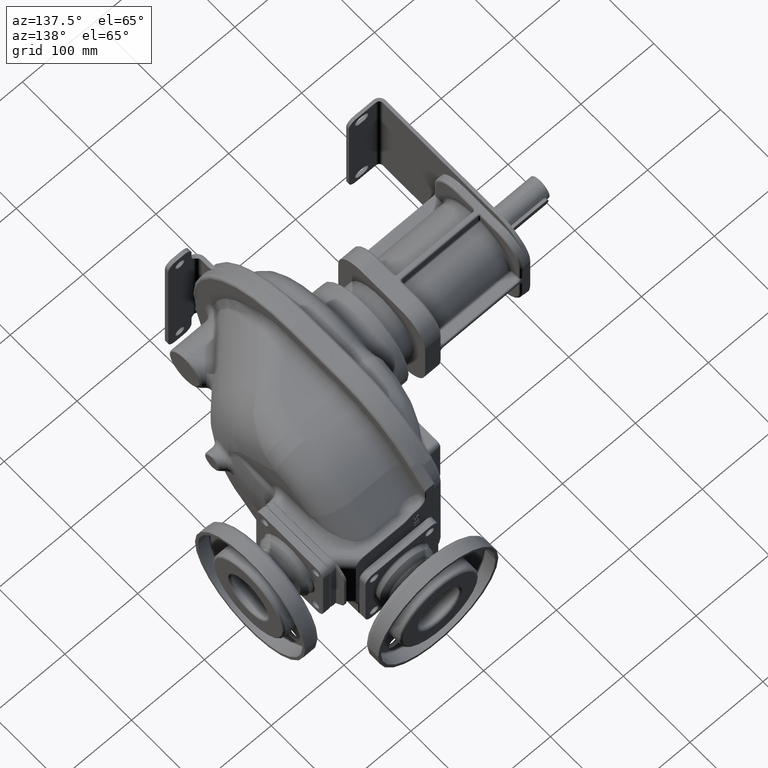
[diagram: clean part render]
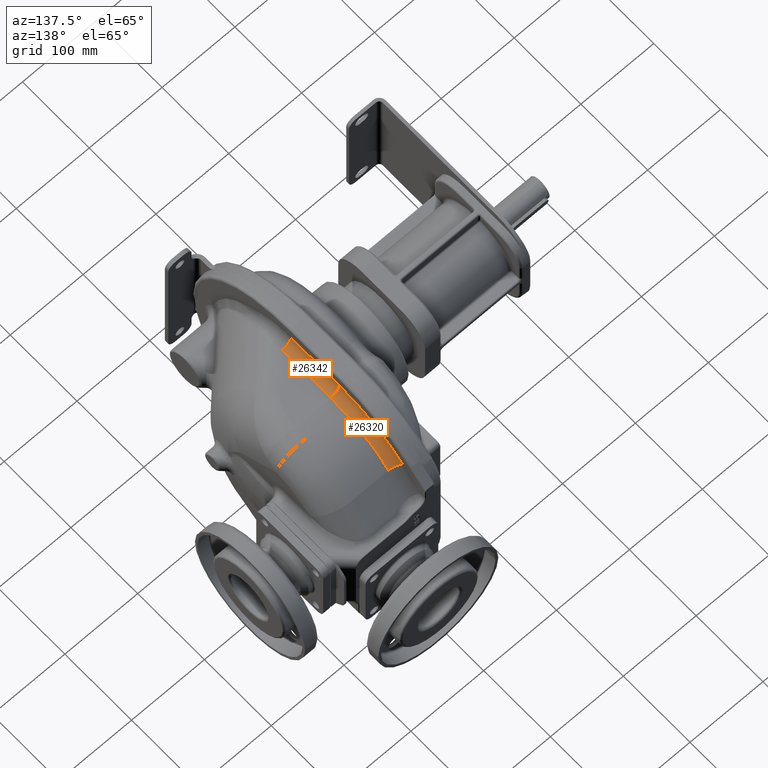
[diagram: same view with one multi-face feature highlighted, each face labeled with its STEP entity id]
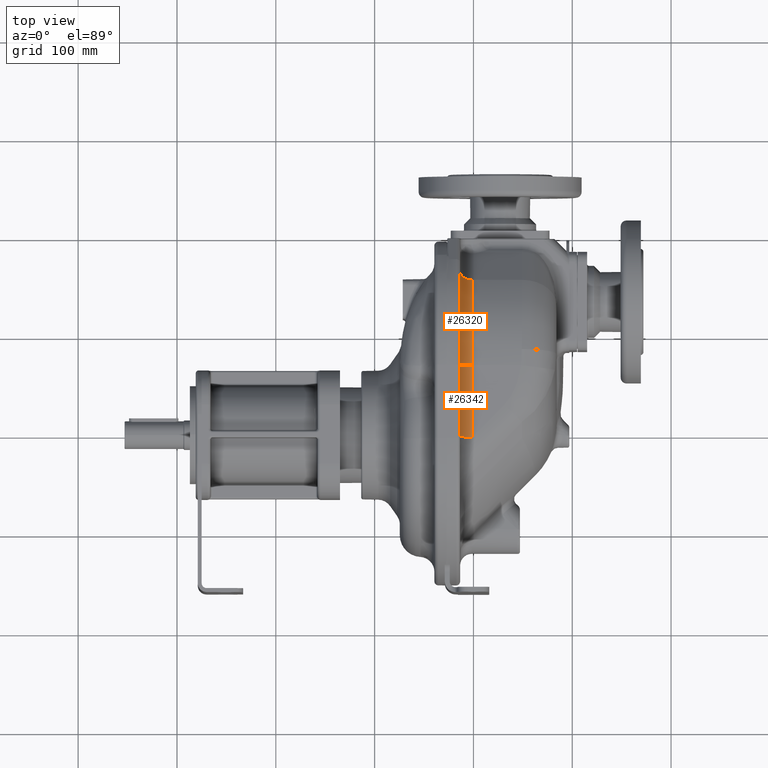
[diagram: same view with one multi-face feature highlighted, each face labeled with its STEP entity id]
A machine part, auxiliary view. The highlighted faces form ONE feature: a constant-radius fillet chain: 2 tangent blend faces with common blend radius 12 mm. The faces share edges in the B-rep.
A second angle (top view) of the same feature is appended — it is thin or edge-on in the first view.
Their STEP definitions:
[1] entity #26320 (Torus):
#1146=CARTESIAN_POINT('',(-1.5E0,6.9E1,-1.E1));
#1147=DIRECTION('',(-1.E0,0.E0,0.E0));
#1148=DIRECTION('',(0.E0,0.E0,1.E0));
#1149=AXIS2_PLACEMENT_3D('',#1146,#1147,#1148);
#1172=CARTESIAN_POINT('',(-1.5E0,6.9E1,1.25E2));
#1173=DIRECTION('',(0.E0,1.E0,0.E0));
#1174=DIRECTION('',(0.E0,0.E0,-1.E0));
#1175=AXIS2_PLACEMENT_3D('',#1172,#1173,#1174);
#1364=CARTESIAN_POINT('',(-1.35E1,6.9E1,-1.E1));
#1365=DIRECTION('',(-1.E0,0.E0,0.E0));
#1366=DIRECTION('',(0.E0,0.E0,1.E0));
#1367=AXIS2_PLACEMENT_3D('',#1364,#1365,#1366);
#8436=CARTESIAN_POINT('',(-1.5E0,1.644594154602E2,8.545941546018E1));
#8437=DIRECTION('',(0.E0,7.071067811865E-1,-7.071067811865E-1));
#8438=DIRECTION('',(0.E0,-7.071067811865E-1,-7.071067811865E-1));
#8439=AXIS2_PLACEMENT_3D('',#8436,#8437,#8438);
#22466=CARTESIAN_POINT('',(-1.5E0,1.559741340860E2,7.697413408586E1));
#22468=VERTEX_POINT('',#22466);
#22470=CARTESIAN_POINT('',(-1.35E1,1.644594154602E2,8.545941546018E1));
#22472=VERTEX_POINT('',#22470);
#22474=CARTESIAN_POINT('',(-1.5E0,6.9E1,1.13E2));
#22475=VERTEX_POINT('',#22474);
#22476=CARTESIAN_POINT('',(-1.35E1,6.9E1,1.25E2));
#22477=VERTEX_POINT('',#22476);
#26306=CARTESIAN_POINT('',(-1.5E0,6.9E1,-1.E1));
#26307=DIRECTION('',(-1.E0,0.E0,0.E0));
#26308=DIRECTION('',(0.E0,-6.947093157717E-3,9.999758686572E-1));
#26309=AXIS2_PLACEMENT_3D('',#26306,#26307,#26308);
#26310=TOROIDAL_SURFACE('',#26309,1.35E2,1.2E1);
#26311=ORIENTED_EDGE('',*,*,#26287,.F.);
#26313=ORIENTED_EDGE('',*,*,#26312,.T.);
#26315=ORIENTED_EDGE('',*,*,#26314,.T.);
#26317=ORIENTED_EDGE('',*,*,#26316,.F.);
#26318=EDGE_LOOP('',(#26311,#26313,#26315,#26317));
#26319=FACE_OUTER_BOUND('',#26318,.F.);
#1150=CIRCLE('',#1149,1.23E2);
#1176=CIRCLE('',#1175,1.2E1);
#1368=CIRCLE('',#1367,1.35E2);
#8440=CIRCLE('',#8439,1.2E1);
#26287=EDGE_CURVE('',#22475,#22468,#1150,.T.);
#26312=EDGE_CURVE('',#22475,#22477,#1176,.T.);
#26314=EDGE_CURVE('',#22477,#22472,#1368,.T.);
#26316=EDGE_CURVE('',#22468,#22472,#8440,.T.);
#26320=ADVANCED_FACE('',(#26319),#26310,.F.);
[2] entity #26342 (Cylinder):
#1172=CARTESIAN_POINT('',(-1.5E0,6.9E1,1.25E2));
#1173=DIRECTION('',(0.E0,1.E0,0.E0));
#1174=DIRECTION('',(0.E0,0.E0,-1.E0));
#1175=AXIS2_PLACEMENT_3D('',#1172,#1173,#1174);
#1177=CARTESIAN_POINT('',(-1.5E0,-3.730191677518E0,1.25E2));
#1178=DIRECTION('',(0.E0,1.E0,0.E0));
#1179=DIRECTION('',(0.E0,0.E0,-1.E0));
#1180=AXIS2_PLACEMENT_3D('',#1177,#1178,#1179);
#1182=DIRECTION('',(-4.646651973572E-14,1.E0,0.E0));
#1183=VECTOR('',#1182,7.273019167736E1);
#1184=CARTESIAN_POINT('',(-1.499999999997E0,-3.730191677495E0,1.13E2));
#1185=LINE('',#1184,#1183);
#1369=DIRECTION('',(0.E0,1.E0,-1.680366127629E-14));
#1370=VECTOR('',#1369,7.273019167743E1);
#1371=CARTESIAN_POINT('',(-1.35E1,-3.730191677433E0,1.25E2));
#1372=LINE('',#1371,#1370);
#22474=CARTESIAN_POINT('',(-1.5E0,6.9E1,1.13E2));
#22475=VERTEX_POINT('',#22474);
#22476=CARTESIAN_POINT('',(-1.35E1,6.9E1,1.25E2));
#22477=VERTEX_POINT('',#22476);
#22478=CARTESIAN_POINT('',(-1.499999999997E0,-3.730191677495E0,1.13E2));
#22479=VERTEX_POINT('',#22478);
#22480=CARTESIAN_POINT('',(-1.35E1,-3.730191677433E0,1.25E2));
#22481=VERTEX_POINT('',#22480);
#26328=CARTESIAN_POINT('',(-1.5E0,-5.854499331816E0,1.25E2));
#26329=DIRECTION('',(0.E0,1.E0,0.E0));
#26330=DIRECTION('',(0.E0,0.E0,-1.E0));
#26331=AXIS2_PLACEMENT_3D('',#26328,#26329,#26330);
#26332=CYLINDRICAL_SURFACE('',#26331,1.2E1);
#26334=ORIENTED_EDGE('',*,*,#26333,.F.);
#26336=ORIENTED_EDGE('',*,*,#26335,.T.);
#26338=ORIENTED_EDGE('',*,*,#26337,.T.);
#26339=ORIENTED_EDGE('',*,*,#26312,.F.);
#26340=EDGE_LOOP('',(#26334,#26336,#26338,#26339));
#26341=FACE_OUTER_BOUND('',#26340,.F.);
#1176=CIRCLE('',#1175,1.2E1);
#1181=CIRCLE('',#1180,1.2E1);
#26312=EDGE_CURVE('',#22475,#22477,#1176,.T.);
#26333=EDGE_CURVE('',#22479,#22475,#1185,.T.);
#26335=EDGE_CURVE('',#22479,#22481,#1181,.T.);
#26337=EDGE_CURVE('',#22481,#22477,#1372,.T.);
#26342=ADVANCED_FACE('',(#26341),#26332,.F.);